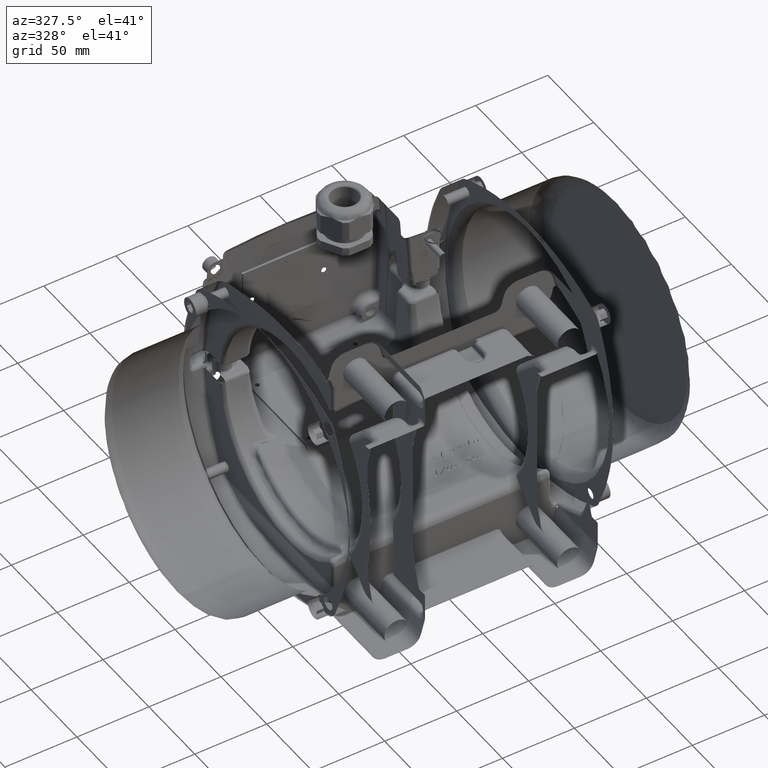
[diagram: clean part render]
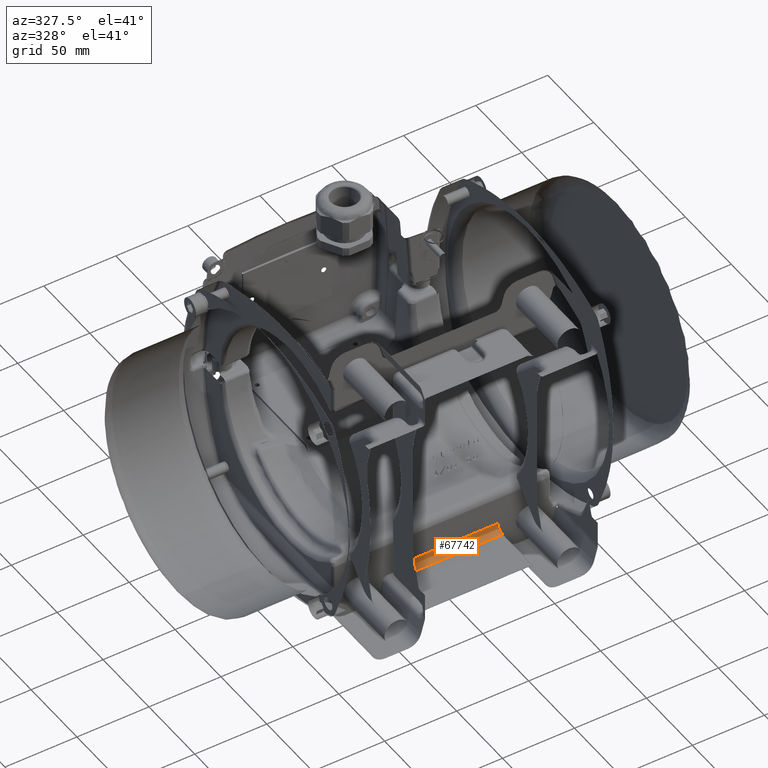
[diagram: same view with one face highlighted and labeled with its STEP entity id]
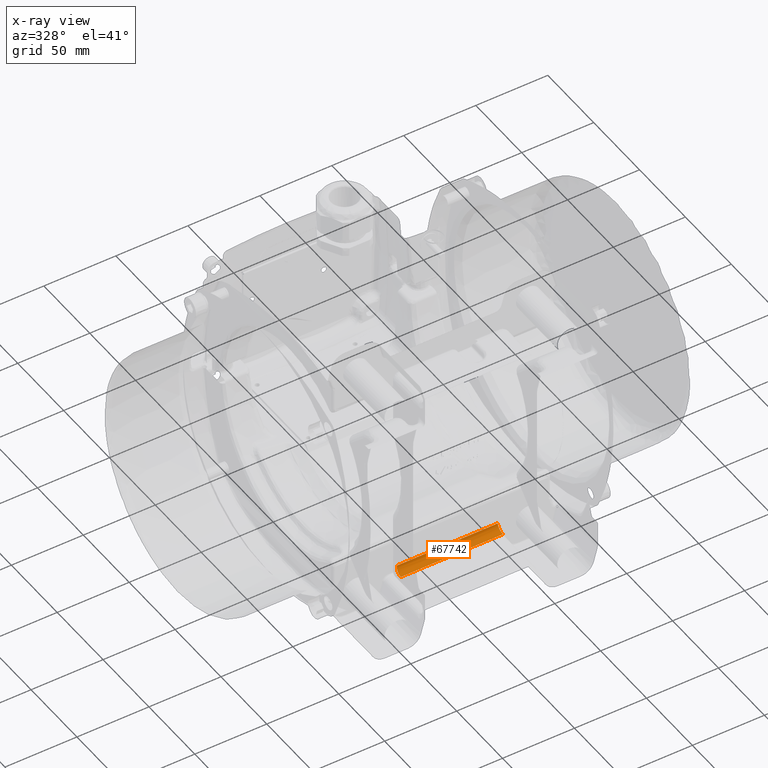
[diagram: x-ray of the same camera — body ghosted, the highlighted face saturated]
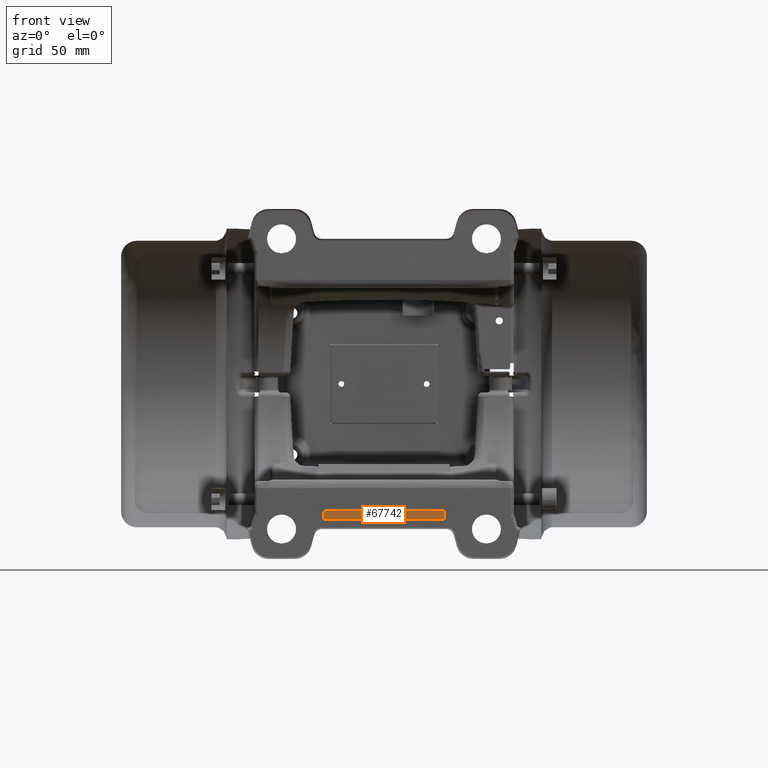
[diagram: same view with one face highlighted and labeled with its STEP entity id]
A machine part, auxiliary view. The second image highlights one B-rep face of the part: STEP entity #67742.
The next image is the same camera in x-ray: the body ghosted, the highlighted face saturated — about 0% of this face is hidden behind the body in this view.
A second angle (front view) of the same face is appended — the face is thin or edge-on in the first view.
In plain terms, the highlighted face is a freeform B-spline surface patch.
Its self-contained STEP definition (entity closure, byte-faithful):
#270 = CARTESIAN_POINT ( 'NONE',  ( -31.34924865863064600, -55.57102062944999700, -74.00000000000000000 ) ) ;
#888 = CARTESIAN_POINT ( 'NONE',  ( -31.58935752752066500, -56.19448230354721100, -76.42085798801069500 ) ) ;
#2209 = CARTESIAN_POINT ( 'NONE',  ( 39.15489746234055000, -60.57102062944999700, -79.00000000000000000 ) ) ;
#3738 = EDGE_CURVE ( 'NONE', #123130, #17698, #103605, .T. ) ;
#4447 = CARTESIAN_POINT ( 'NONE',  ( 15.48684875535015100, -58.60588154273359900, -78.73980611942110400 ) ) ;
#8868 = CARTESIAN_POINT ( 'NONE',  ( 38.98061373854719800, -56.75607679994029600, -77.27921672146079900 ) ) ;
#11289 = CARTESIAN_POINT ( 'NONE',  ( -31.56208053548577300, -56.05612856968785700, -76.14855604899430800 ) ) ;
#11738 = CARTESIAN_POINT ( 'NONE',  ( -31.56763993375252000, -56.08285147300542700, -76.20401941734091600 ) ) ;
#11859 = VERTEX_POINT ( 'NONE', #66563 ) ;
#12637 = CARTESIAN_POINT ( 'NONE',  ( -8.181199951640230900, -59.92071955606289200, -79.00000000000000000 ) ) ;
#14886 = CARTESIAN_POINT ( 'NONE',  ( -31.84924865863059700, -56.94395607208530000, -77.62706455736469000 ) ) ;
#17698 = VERTEX_POINT ( 'NONE', #66962 ) ;
#21314 = CARTESIAN_POINT ( 'NONE',  ( -31.84702192210098900, -60.00526426819947500, -78.99999999999667500 ) ) ;
#21760 = CARTESIAN_POINT ( 'NONE',  ( -31.56074923432144900, -56.04983786057335500, -76.13527730287205500 ) ) ;
#22198 = CARTESIAN_POINT ( 'NONE',  ( 15.48684875535015100, -60.57102062944999700, -79.00000000000000000 ) ) ;
#24177 = DIRECTION ( 'NONE',  ( -1.000000000000000000, -0.0000000000000000000, -0.0000000000000000000 ) ) ;
#24444 = CARTESIAN_POINT ( 'NONE',  ( -8.181199951640230900, -58.60588154273359900, -78.73980611942110400 ) ) ;
#25739 = CARTESIAN_POINT ( 'NONE',  ( 39.15035318380084600, -59.98781601824469300, -78.97714455973510900 ) ) ;
#27076 = CARTESIAN_POINT ( 'NONE',  ( 39.15282442816209900, -60.57102062941449800, -79.00000000000000000 ) ) ;
#27180 = LINE ( 'NONE', #83564, #79029 ) ;
#29021 = EDGE_CURVE ( 'NONE', #123130, #11859, #27180, .T. ) ;
#31319 = CARTESIAN_POINT ( 'NONE',  ( -31.76209930155449300, -57.77987240207773600, -78.15110285063161700 ) ) ;
#31781 = CARTESIAN_POINT ( 'NONE',  ( -31.77037834026143800, -57.90852658961568300, -78.23475456909641000 ) ) ;
#32204 = CARTESIAN_POINT ( 'NONE',  ( -31.56036854080633000, -56.04804694967277400, -76.13148039235143500 ) ) ;
#33977 = CARTESIAN_POINT ( 'NONE',  ( -8.181199951640230900, -60.57102062944999700, -79.00000000000000000 ) ) ;
#34324 = LINE ( 'NONE', #270, #35876 ) ;
#34430 = CARTESIAN_POINT ( 'NONE',  ( -8.181199951640230900, -55.83121451002890000, -75.96513908671640500 ) ) ;
#34875 = CARTESIAN_POINT ( 'NONE',  ( -8.181199951640230900, -55.57102062944999700, -74.65030107338709800 ) ) ;
#35876 = VECTOR ( 'NONE', #41133, 1000.000000000000000 ) ;
#37490 = ORIENTED_EDGE ( 'NONE', *, *, #29021, .T. ) ;
#38844 = CARTESIAN_POINT ( 'NONE',  ( 39.10691038613725100, -58.37978567385170000, -78.53932547439410400 ) ) ;
#41133 = DIRECTION ( 'NONE',  ( 1.000000000000000000, 1.224606000000000100E-016, 2.068304269197540200E-032 ) ) ;
#41753 = CARTESIAN_POINT ( 'NONE',  ( -31.70391919413275500, -57.05208330329741500, -77.56607307726038400 ) ) ;
#42201 = CARTESIAN_POINT ( 'NONE',  ( -31.74427343750693700, -57.52951404588100100, -77.97132888228524900 ) ) ;
#42652 = CARTESIAN_POINT ( 'NONE',  ( -31.39864424916636300, -55.57102062944999000, -74.51473988304422800 ) ) ;
#44443 = CARTESIAN_POINT ( 'NONE',  ( 15.48684875535015100, -59.92071955606289200, -79.00000000000000000 ) ) ;
#44899 = CARTESIAN_POINT ( 'NONE',  ( 39.15489746234055000, -55.83121451002890000, -75.96513908671640500 ) ) ;
#45773 = CARTESIAN_POINT ( 'NONE',  ( -31.84924865863059700, -55.57102062944999700, -74.00000000000000000 ) ) ;
#49051 = FACE_OUTER_BOUND ( 'NONE', #101663, .T. ) ;
#51892 = CARTESIAN_POINT ( 'NONE',  ( -31.34717562445214900, -55.57102062944999700, -74.00000000000000000 ) ) ;
#52099 = ORIENTED_EDGE ( 'NONE', *, *, #3738, .F. ) ;
#52652 = CARTESIAN_POINT ( 'NONE',  ( -31.67991167391819100, -56.82213852509025300, -77.32635104922148600 ) ) ;
#52904 = CARTESIAN_POINT ( 'NONE',  ( 38.65282442816209900, -55.57102062944999700, -74.00000000000000000 ) ) ;
#53348 = CARTESIAN_POINT ( 'NONE',  ( 38.73840279043179900, -55.61985409511090200, -74.85513466586310500 ) ) ;
#53537 = CARTESIAN_POINT ( 'NONE',  ( -31.62428978660235400, -56.40476178905036200, -76.77007654695823600 ) ) ;
#54843 = CARTESIAN_POINT ( 'NONE',  ( 39.15489746234055000, -59.92071955606289200, -79.00000000000000000 ) ) ;
#55296 = CARTESIAN_POINT ( 'NONE',  ( 39.15489746234055000, -58.60588154273359900, -78.73980611942110400 ) ) ;
#63042 = CARTESIAN_POINT ( 'NONE',  ( -31.84924865863059700, -58.60588154273369800, -78.73980611942110400 ) ) ;
#63045 = CARTESIAN_POINT ( 'NONE',  ( -31.60121291518362000, -56.26300131238289700, -76.53935704452182200 ) ) ;
#66172 = CARTESIAN_POINT ( 'NONE',  ( 15.48684875535015100, -55.57102062944999700, -74.00000000000000000 ) ) ;
#66563 = CARTESIAN_POINT ( 'NONE',  ( -31.84717562445214900, -60.57102062941019900, -79.00000000000000000 ) ) ;
#66962 = CARTESIAN_POINT ( 'NONE',  ( 38.65282442816209900, -55.57102062944999700, -74.00000000000000000 ) ) ;
#67742 = ADVANCED_FACE ( 'NONE', ( #49051 ), #86920, .T. ) ;
#71222 = EDGE_CURVE ( 'NONE', #101180, #17698, #34324, .T. ) ;
#71920 = CARTESIAN_POINT ( 'NONE',  ( 38.90384638074355200, -56.21540415847309900, -76.51086956595759100 ) ) ;
#73442 = CARTESIAN_POINT ( 'NONE',  ( -31.56393944601134600, -56.06498199418202700, -76.16709925834884100 ) ) ;
#74762 = CARTESIAN_POINT ( 'NONE',  ( -31.84924865863059700, -59.92071955606289200, -79.00000000000000000 ) ) ;
#76095 = CARTESIAN_POINT ( 'NONE',  ( -8.181199951640220300, -56.94395607208530000, -77.62706455736469000 ) ) ;
#76981 = CARTESIAN_POINT ( 'NONE',  ( -8.181199951640230900, -55.57102062944999700, -74.00000000000000000 ) ) ;
#79029 = VECTOR ( 'NONE', #24177, 1000.000000000000000 ) ;
#83564 = CARTESIAN_POINT ( 'NONE',  ( -31.84924865863059700, -60.57102062942159600, -79.00000000000000000 ) ) ;
#83819 = CARTESIAN_POINT ( 'NONE',  ( -31.56128200240587800, -56.05235179568094100, -76.14059117131833400 ) ) ;
#84703 = CARTESIAN_POINT ( 'NONE',  ( -31.57497157599504300, -56.11923158297962300, -76.27719283619670400 ) ) ;
#86037 = CARTESIAN_POINT ( 'NONE',  ( -31.84924865863059700, -55.57102062944999700, -74.65030107338709800 ) ) ;
#86920 = B_SPLINE_SURFACE_WITH_KNOTS ( 'NONE', 3, 3, ( 
 ( #96045, #33977, #22198, #2209 ),
 ( #74762, #12637, #44443, #54843 ),
 ( #63042, #24444, #4447, #55296 ),
 ( #14886, #76095, #127314, #106918 ),
 ( #87822, #34430, #128662, #44899 ),
 ( #86037, #34875, #98263, #117808 ),
 ( #45773, #76981, #66172, #107371 ) ),
 .UNSPECIFIED., .F., .F., .F.,
 ( 4, 1, 1, 1, 4 ),
 ( 4, 4 ),
 ( 0.0000000000000000000, 1.950903220161285000, 3.901806440322565200, 5.852709660483850700, 7.803612880645130400 ),
 ( 0.0000000000000000000, 71.00414612097110000 ),
 .UNSPECIFIED. ) ;
#87786 = CARTESIAN_POINT ( 'NONE',  ( 39.15274358235169700, -60.37541482195509700, -78.99991450296271000 ) ) ;
#87822 = CARTESIAN_POINT ( 'NONE',  ( -31.84924865863059700, -55.83121451002890000, -75.96513908671640500 ) ) ;
#93802 = CARTESIAN_POINT ( 'NONE',  ( -31.83672592668013800, -59.41975581629176200, -78.90142843536129600 ) ) ;
#94248 = CARTESIAN_POINT ( 'NONE',  ( -31.73485924319686200, -57.40934127643809900, -77.87653745813554500 ) ) ;
#96045 = CARTESIAN_POINT ( 'NONE',  ( -31.84924865863059700, -60.57102062944999700, -79.00000000000000000 ) ) ;
#96653 = EDGE_CURVE ( 'NONE', #11859, #101180, #123389, .T. ) ;
#98263 = CARTESIAN_POINT ( 'NONE',  ( 15.48684875535015100, -55.57102062944999700, -74.65030107338709800 ) ) ;
#101180 = VERTEX_POINT ( 'NONE', #51892 ) ;
#101663 = EDGE_LOOP ( 'NONE', ( #128513, #52099, #37490, #119167 ) ) ;
#103605 = B_SPLINE_CURVE_WITH_KNOTS ( 'NONE', 3,
 ( #27076, #87786, #25739, #121323, #38844, #122219, #8868, #71920, #112706, #53348, #125791, #52904 ),
 .UNSPECIFIED., .F., .F.,
 ( 4, 1, 1, 1, 1, 1, 1, 1, 1, 4 ),
 ( 0.0000000000000000000, 0.08738155762510757500, 0.1736307396923747700, 0.3338930391635039400, 0.4728075381564383300, 0.5947012976003790400, 0.7048854489273109800, 0.8070581413238771000, 0.9043908758624682500, 1.000000000000000000 ),
 .UNSPECIFIED. ) ;
#103804 = CARTESIAN_POINT ( 'NONE',  ( -31.84717562445214900, -60.57102062941019900, -79.00000000000000000 ) ) ;
#104254 = CARTESIAN_POINT ( 'NONE',  ( -31.80606849394429500, -58.57736582744701800, -78.59519625395003600 ) ) ;
#104701 = CARTESIAN_POINT ( 'NONE',  ( -31.54067106432505000, -55.95553513807759300, -75.93502868251657400 ) ) ;
#106918 = CARTESIAN_POINT ( 'NONE',  ( 39.15489746234050000, -56.94395607208530000, -77.62706455736469000 ) ) ;
#107371 = CARTESIAN_POINT ( 'NONE',  ( 39.15489746234055000, -55.57102062944999700, -74.00000000000000000 ) ) ;
#112706 = CARTESIAN_POINT ( 'NONE',  ( 38.82249280909359600, -55.84040812244920500, -75.69621868658731500 ) ) ;
#114241 = CARTESIAN_POINT ( 'NONE',  ( -31.63882916233853800, -56.50555376316981400, -76.91550747477808200 ) ) ;
#115122 = CARTESIAN_POINT ( 'NONE',  ( -31.34717562445214900, -55.57102062944999700, -74.00000000000000000 ) ) ;
#115575 = CARTESIAN_POINT ( 'NONE',  ( -31.51314532099766600, -55.84236199926654400, -75.66481349856680100 ) ) ;
#117808 = CARTESIAN_POINT ( 'NONE',  ( 39.15489746234055000, -55.57102062944999700, -74.65030107338709800 ) ) ;
#119135 = CARTESIAN_POINT ( 'NONE',  ( 39.15282442816209900, -60.57102062941449800, -79.00000000000000000 ) ) ;
#119167 = ORIENTED_EDGE ( 'NONE', *, *, #96653, .T. ) ;
#121323 = CARTESIAN_POINT ( 'NONE',  ( 39.13676136068205100, -59.24204698485349500, -78.84555336610588900 ) ) ;
#122219 = CARTESIAN_POINT ( 'NONE',  ( 39.05050329268130600, -57.47563742058950700, -77.97089061200570400 ) ) ;
#123130 = VERTEX_POINT ( 'NONE', #119135 ) ;
#123389 = B_SPLINE_CURVE_WITH_KNOTS ( 'NONE', 3,
 ( #103804, #21314, #93802, #104254, #125096, #31781, #31319, #42201, #94248, #41753, #52652, #114241, #53537, #63045, #888, #84703, #11738, #73442, #11289, #83819, #21760, #32204, #104701, #115575, #125981, #42652, #115122 ),
 .UNSPECIFIED., .F., .F.,
 ( 4, 2, 2, 2, 2, 2, 2, 1, 1, 1, 1, 1, 2, 2, 2, 4 ),
 ( 0.0000000000000000000, 0.2499999999997613600, 0.3749999999996420600, 0.4374999999995837200, 0.4999999999995252700, 0.6249999999994120300, 0.6874999999993535200, 0.7187499999993242100, 0.7343749999993094400, 0.7421874999993005600, 0.7460937499992939000, 0.7480468749992922300, 0.7490234374992893500, 0.7499999999992863500, 0.8749999999996432900, 1.000000000000000000 ),
 .UNSPECIFIED. ) ;
#125096 = CARTESIAN_POINT ( 'NONE',  ( -31.79331377643161700, -58.30299683814930500, -78.46647100147524200 ) ) ;
#125791 = CARTESIAN_POINT ( 'NONE',  ( 38.68110218156940000, -55.57101330717490100, -74.28248113899660200 ) ) ;
#125981 = CARTESIAN_POINT ( 'NONE',  ( -31.44213191341830400, -55.65027897368795400, -74.95552222631887700 ) ) ;
#127314 = CARTESIAN_POINT ( 'NONE',  ( 15.48684875535015100, -56.94395607208530000, -77.62706455736469000 ) ) ;
#128513 = ORIENTED_EDGE ( 'NONE', *, *, #71222, .T. ) ;
#128662 = CARTESIAN_POINT ( 'NONE',  ( 15.48684875535015100, -55.83121451002890000, -75.96513908671640500 ) ) ;